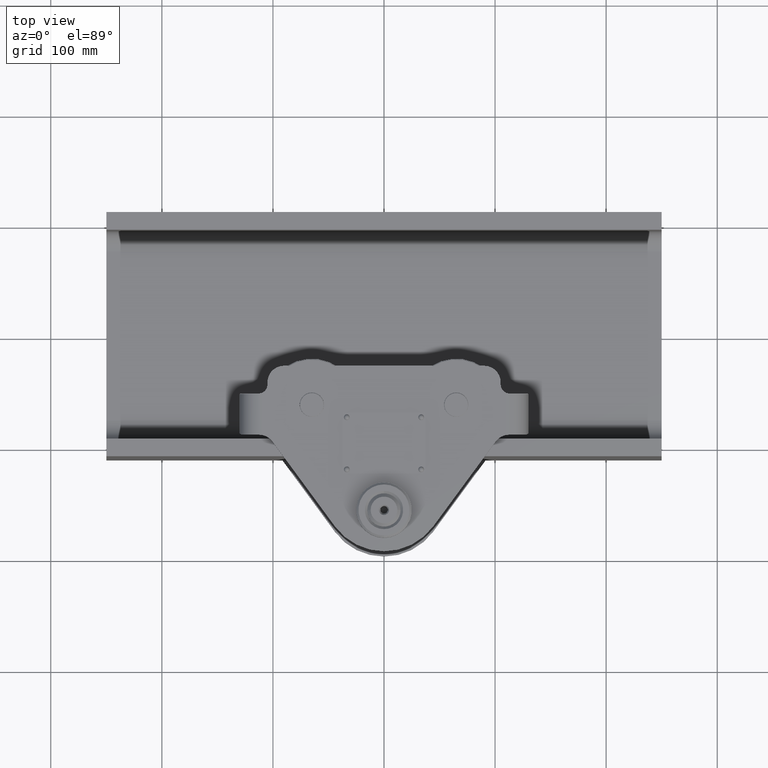
[diagram: clean part render]
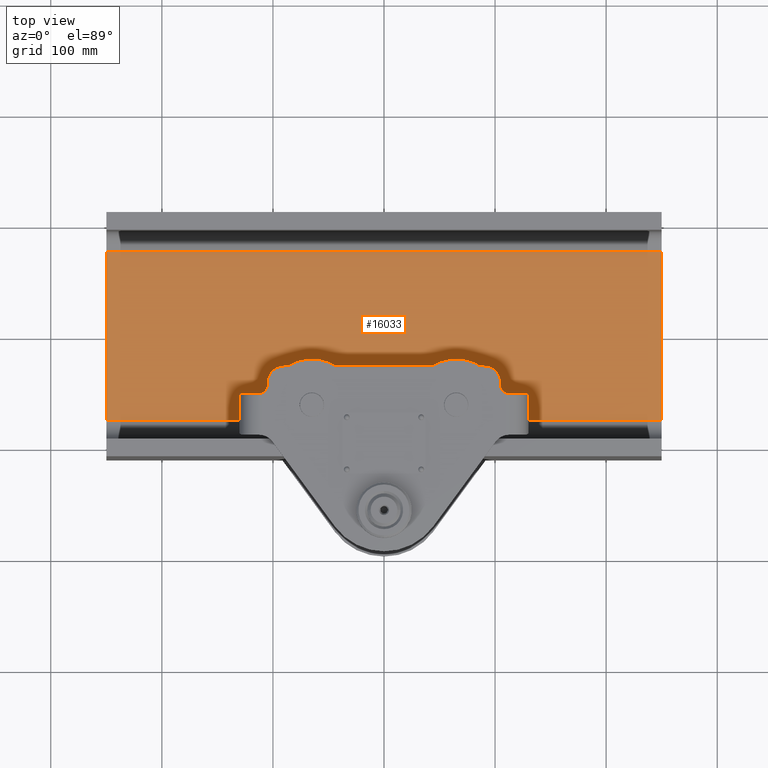
[diagram: same view with one face highlighted and labeled with its STEP entity id]
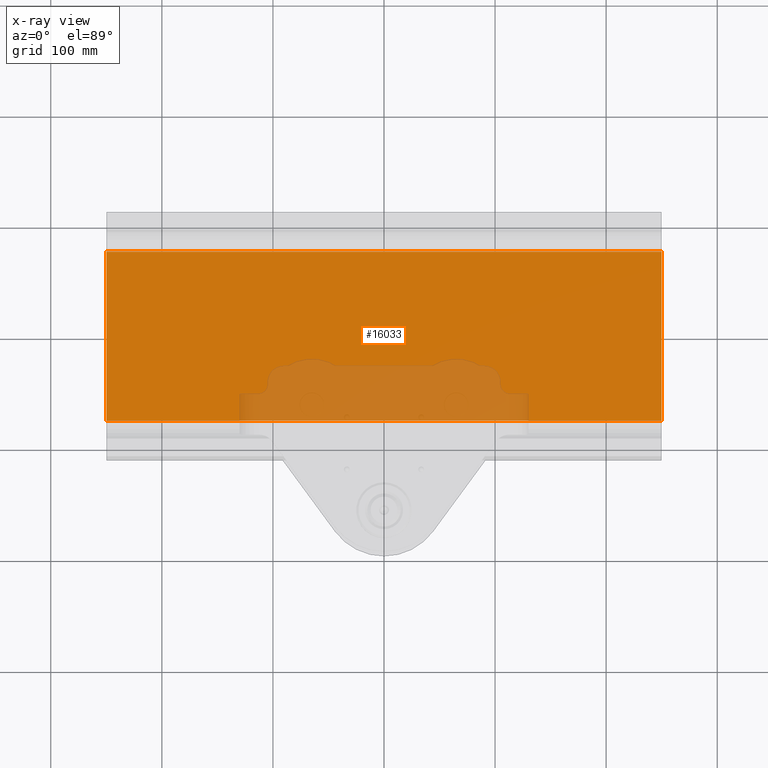
[diagram: x-ray of the same camera — body ghosted, the highlighted face saturated]
A machine part, top view. The second image highlights one B-rep face of the part: STEP entity #16033.
The next image is the same camera in x-ray: the body ghosted, the highlighted face saturated — about 16% of this face is hidden behind the body in this view.
In plain terms, the highlighted planar face has unit normal (0, 0, -1).
Its self-contained STEP definition (entity closure, byte-faithful):
#596 = CARTESIAN_POINT ( 'NONE',  ( 250.0000000000000600, -75.99999999999973000, 4.749999999999947600 ) ) ;
#724 = CARTESIAN_POINT ( 'NONE',  ( 250.0000000000000600, 75.99999999999991500, 4.749999999999953800 ) ) ;
#1055 = AXIS2_PLACEMENT_3D ( 'NONE', #30049, #24159, #11897 ) ;
#1301 = LINE ( 'NONE', #34233, #18823 ) ;
#3145 = EDGE_CURVE ( 'NONE', #26705, #13716, #1301, .T. ) ;
#4304 = VECTOR ( 'NONE', #6624, 1000.000000000000000 ) ;
#6624 = DIRECTION ( 'NONE',  ( 0.0000000000000000000, 1.000000000000000000, 4.293176542341493300E-017 ) ) ;
#9052 = EDGE_LOOP ( 'NONE', ( #28301, #18671, #24629, #27484 ) ) ;
#9476 = FACE_OUTER_BOUND ( 'NONE', #9052, .T. ) ;
#11897 = DIRECTION ( 'NONE',  ( -1.000000000000000000, 0.0000000000000000000, -7.703719777548941700E-034 ) ) ;
#12707 = VECTOR ( 'NONE', #19664, 1000.000000000000000 ) ;
#13716 = VERTEX_POINT ( 'NONE', #17933 ) ;
#15327 = VERTEX_POINT ( 'NONE', #724 ) ;
#16033 = ADVANCED_FACE ( 'NONE', ( #9476 ), #18142, .F. ) ;
#16216 = CARTESIAN_POINT ( 'NONE',  ( -250.0000000000000600, 75.99999999999991500, 4.749999999999953800 ) ) ;
#17933 = CARTESIAN_POINT ( 'NONE',  ( 250.0000000000000600, -75.99999999999973000, 4.749999999999965400 ) ) ;
#18116 = EDGE_CURVE ( 'NONE', #26738, #15327, #27285, .T. ) ;
#18142 = PLANE ( 'NONE',  #1055 ) ;
#18512 = LINE ( 'NONE', #21896, #4304 ) ;
#18671 = ORIENTED_EDGE ( 'NONE', *, *, #18116, .F. ) ;
#18823 = VECTOR ( 'NONE', #36938, 1000.000000000000000 ) ;
#19664 = DIRECTION ( 'NONE',  ( 1.000000000000000000, 0.0000000000000000000, 7.703719777548941700E-034 ) ) ;
#21896 = CARTESIAN_POINT ( 'NONE',  ( -250.0000000000000600, -75.99999999999973000, 4.749999999999947600 ) ) ;
#24159 = DIRECTION ( 'NONE',  ( 7.703719777548941700E-034, 4.293176542341593700E-017, -1.000000000000000000 ) ) ;
#24629 = ORIENTED_EDGE ( 'NONE', *, *, #33331, .F. ) ;
#26705 = VERTEX_POINT ( 'NONE', #37288 ) ;
#26738 = VERTEX_POINT ( 'NONE', #16216 ) ;
#27285 = LINE ( 'NONE', #32098, #12707 ) ;
#27484 = ORIENTED_EDGE ( 'NONE', *, *, #3145, .T. ) ;
#28301 = ORIENTED_EDGE ( 'NONE', *, *, #32125, .T. ) ;
#28795 = VECTOR ( 'NONE', #33468, 1000.000000000000000 ) ;
#30049 = CARTESIAN_POINT ( 'NONE',  ( -250.0000000000000600, -75.99999999999973000, 4.749999999999947600 ) ) ;
#32098 = CARTESIAN_POINT ( 'NONE',  ( -250.0000000000000600, 75.99999999999991500, 4.749999999999953800 ) ) ;
#32125 = EDGE_CURVE ( 'NONE', #13716, #15327, #36917, .T. ) ;
#33331 = EDGE_CURVE ( 'NONE', #26705, #26738, #18512, .T. ) ;
#33468 = DIRECTION ( 'NONE',  ( 0.0000000000000000000, 1.000000000000000000, 4.293176542341493300E-017 ) ) ;
#34233 = CARTESIAN_POINT ( 'NONE',  ( -250.0000000000000600, -75.99999999999973000, 4.749999999999965400 ) ) ;
#36917 = LINE ( 'NONE', #596, #28795 ) ;
#36938 = DIRECTION ( 'NONE',  ( 1.000000000000000000, 0.0000000000000000000, 7.703719777548941700E-034 ) ) ;
#37288 = CARTESIAN_POINT ( 'NONE',  ( -250.0000000000000600, -75.99999999999973000, 4.749999999999965400 ) ) ;